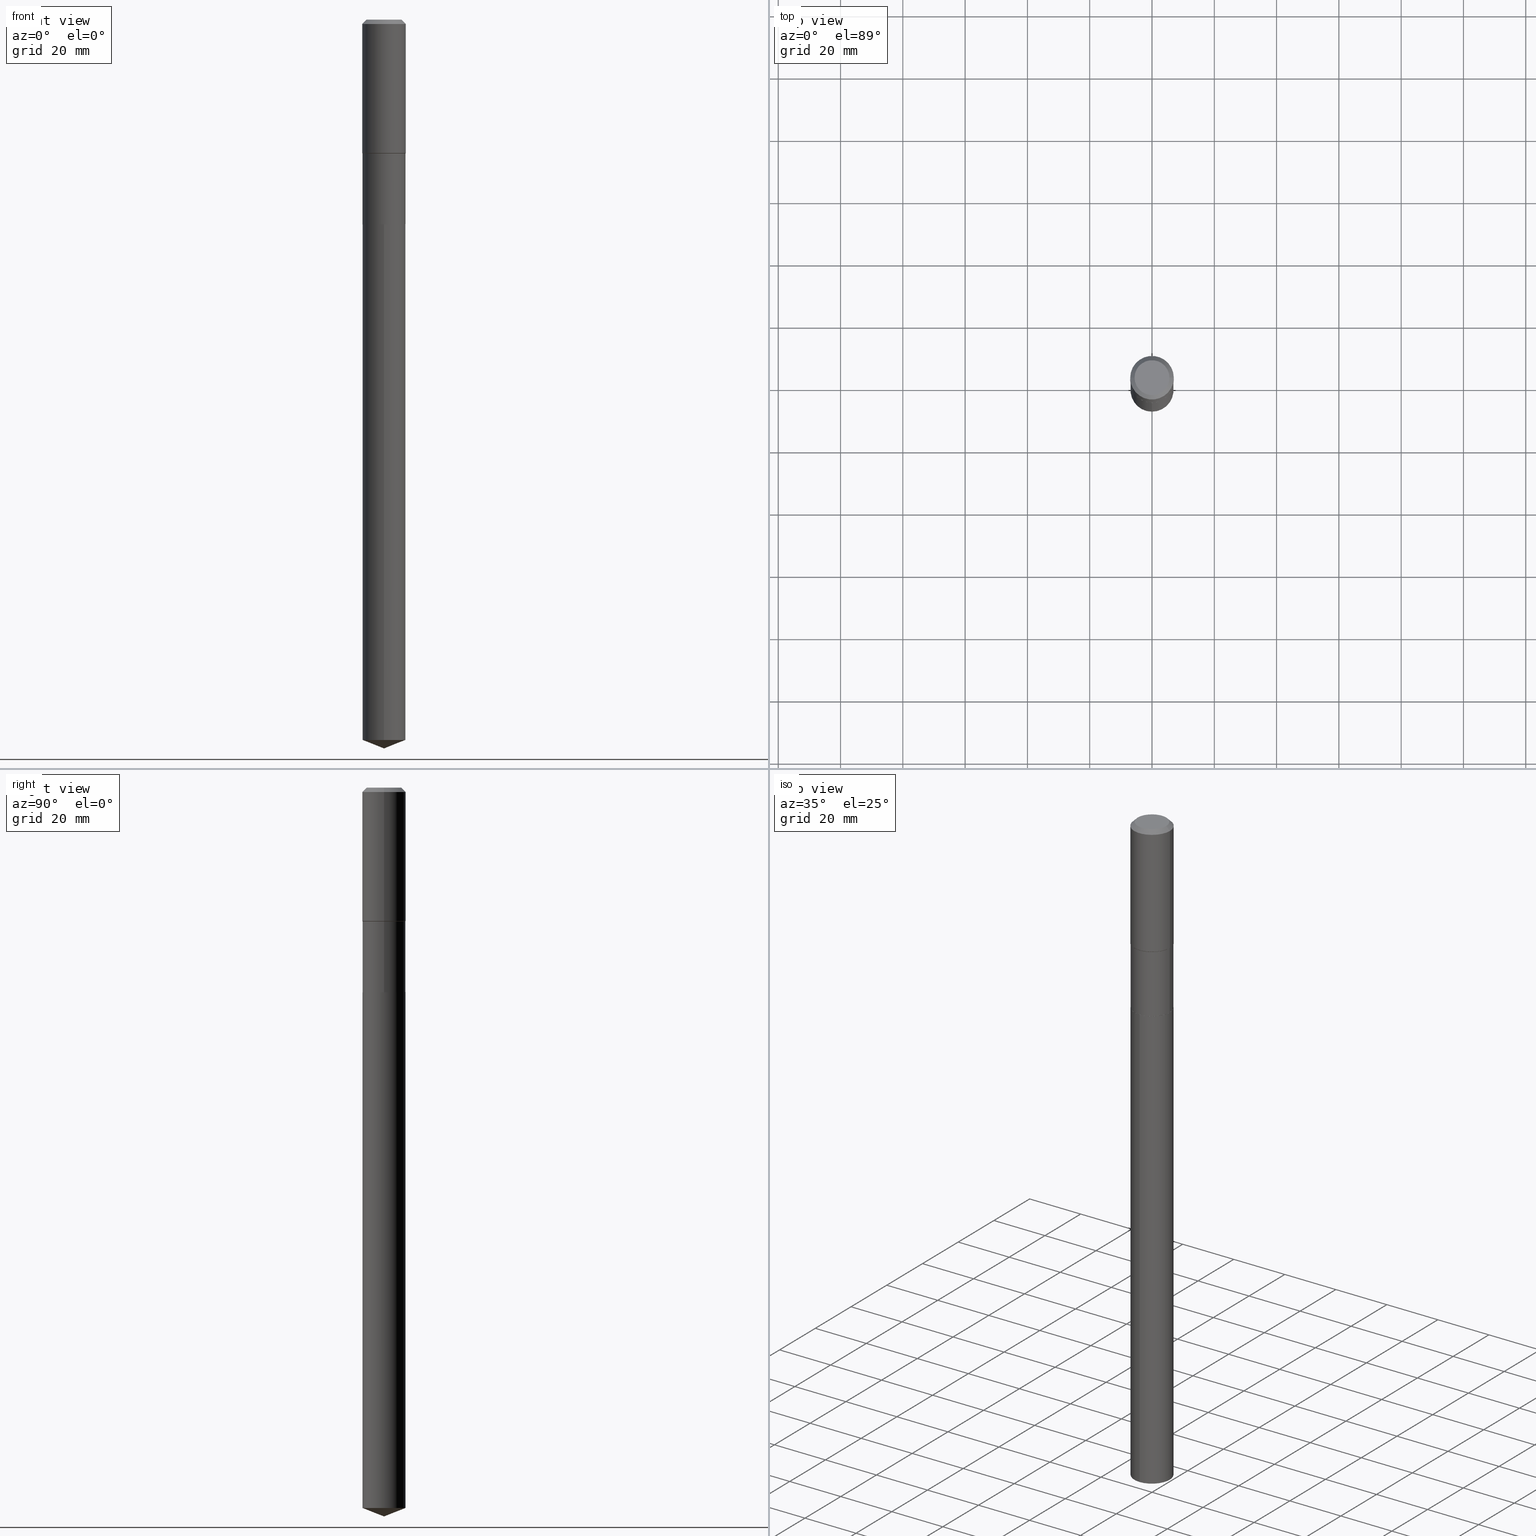
[diagram: canonical four-view strip — front | top / right | iso, engineering-drawing reading convention]
A machine part, canonical four-view strip (front | top / right | iso — engineering-drawing reading convention). The complete STEP part file that produces these views, byte-faithful:
ISO-10303-21;
HEADER;
FILE_DESCRIPTION (( 'STEP AP203' ),
    '1' );
FILE_NAME ('66804.STEP',
    '2024-04-25T06:41:34',
    ( '' ),
    ( '' ),
    'SwSTEP 2.0',
    'SolidWorks 2023',
    '' );
FILE_SCHEMA (( 'CONFIG_CONTROL_DESIGN' ));
ENDSEC;

DATA;
#1 = DIRECTION ( 'NONE',  ( -2.445468806185136877E-29, 3.491481338843145188E-15, 1.000000000000000000 ) ) ;
#2 = VERTEX_POINT ( 'NONE', #15 ) ;
#3 = CARTESIAN_POINT ( 'NONE',  ( 0.2756000000000000116, -2.083203699582869812E-15, -0.05512000000000038397 ) ) ;
#4 = ORIENTED_EDGE ( 'NONE', *, *, #320, .F. ) ;
#5 = VECTOR ( 'NONE', #102, 39.37007874015748143 ) ;
#6 = VERTEX_POINT ( 'NONE', #210 ) ;
#7 = PERSON_AND_ORGANIZATION ( #198, #432 ) ;
#8 = CC_DESIGN_DATE_AND_TIME_ASSIGNMENT ( #80, #388, ( #454 ) ) ;
#9 = CARTESIAN_POINT ( 'NONE',  ( 6.325205067197851305E-29, -9.030716482917789004E-15, -2.586499999999998245 ) ) ;
#10 = COORDINATED_UNIVERSAL_TIME_OFFSET ( 5, 0, .BEHIND. ) ;
#11 = EDGE_CURVE ( 'NONE', #239, #324, #327, .T. ) ;
#12 = ORIENTED_EDGE ( 'NONE', *, *, #238, .T. ) ;
#13 = CARTESIAN_POINT ( 'NONE',  ( 4.134065016855970892E-29, -5.902349203314333913E-15, -1.690499999999998781 ) ) ;
#14 = CIRCLE ( 'NONE', #119, 0.2756000000000002337 ) ;
#15 = CARTESIAN_POINT ( 'NONE',  ( 0.2756000000000002337, -7.813062365996238595E-15, -1.686549999999998439 ) ) ;
#16 = FACE_OUTER_BOUND ( 'NONE', #357, .T. ) ;
#17 = DIRECTION ( 'NONE',  ( 1.000000000000000000, -6.982962677686265922E-15, 4.876176775795935793E-29 ) ) ;
#18 = ORIENTED_EDGE ( 'NONE', *, *, #263, .T. ) ;
#19 = CARTESIAN_POINT ( 'NONE',  ( 2.253107948035980191E-28, -3.216562079087351327E-14, -9.212999999999999190 ) ) ;
#20 = EDGE_LOOP ( 'NONE', ( #396, #387, #195, #101 ) ) ;
#21 = CARTESIAN_POINT ( 'NONE',  ( 1.930189341692375282E-15, 0.2716499999999909543, -2.586999999999999300 ) ) ;
#22 = ADVANCED_FACE ( 'NONE', ( #244 ), #122, .T. ) ;
#23 = DIRECTION ( 'NONE',  ( 1.000000000000000000, -6.982962677686266711E-15, 0.000000000000000000 ) ) ;
#24 = AXIS2_PLACEMENT_3D ( 'NONE', #484, #174, #298 ) ;
#25 = AXIS2_PLACEMENT_3D ( 'NONE', #182, #224, #374 ) ;
#26 = DIRECTION ( 'NONE',  ( -6.982962677686265133E-15, -1.000000000000000000, 4.022599659362065925E-15 ) ) ;
#27 = CARTESIAN_POINT ( 'NONE',  ( 2.253108428361239488E-28, -3.216562079087351327E-14, -9.212999999999999190 ) ) ;
#28 = PRODUCT_RELATED_PRODUCT_CATEGORY ( 'detail', '', ( #305 ) ) ;
#29 = CARTESIAN_POINT ( 'NONE',  ( -9.439721640706190018E-47, 1.347742071746724849E-32, 3.860086710912454339E-18 ) ) ;
#30 = FACE_OUTER_BOUND ( 'NONE', #362, .T. ) ;
#31 =( NAMED_UNIT ( * ) SI_UNIT ( $, .STERADIAN. ) SOLID_ANGLE_UNIT ( ) );
#32 = DIRECTION ( 'NONE',  ( 1.000000000000000000, -6.982962677686266711E-15, 0.000000000000000000 ) ) ;
#33 = CARTESIAN_POINT ( 'NONE',  ( 1.347942405969256589E-30, -1.924504513970355070E-16, -0.05512000000000038397 ) ) ;
#34 = CIRCLE ( 'NONE', #173, 0.2716500000000000026 ) ;
#35 = DATE_AND_TIME ( #39, #302 ) ;
#36 = ADVANCED_FACE ( 'NONE', ( #129 ), #394, .T. ) ;
#37 = PERSON_AND_ORGANIZATION ( #198, #432 ) ;
#38 = ORIENTED_EDGE ( 'NONE', *, *, #59, .T. ) ;
#39 = CALENDAR_DATE ( 2024, 25, 4 ) ;
#40 = EDGE_CURVE ( 'NONE', #324, #239, #309, .T. ) ;
#41 = ORIENTED_EDGE ( 'NONE', *, *, #115, .T. ) ;
#42 = VECTOR ( 'NONE', #255, 39.37007874015748854 ) ;
#43 = ADVANCED_FACE ( 'NONE', ( #377 ), #447, .T. ) ;
#44 = VERTEX_POINT ( 'NONE', #110 ) ;
#45 = DIRECTION ( 'NONE',  ( -6.982962677686265133E-15, -1.000000000000000000, 4.022599659362065925E-15 ) ) ;
#46 = PRODUCT_DEFINITION_SHAPE ( 'NONE', 'NONE',  #256 ) ;
#47 = ORIENTED_EDGE ( 'NONE', *, *, #91, .F. ) ;
#48 = CARTESIAN_POINT ( 'NONE',  ( -0.2716500000000000026, -5.536343501423748497E-15, -2.586499999999998245 ) ) ;
#49 = CIRCLE ( 'NONE', #234, 0.2756000000000000116 ) ;
#50 = VERTEX_POINT ( 'NONE', #76 ) ;
#51 = DIRECTION ( 'NONE',  ( -2.445468806185136597E-29, 3.491481338843145583E-15, 1.000000000000000000 ) ) ;
#52 = ORIENTED_EDGE ( 'NONE', *, *, #121, .T. ) ;
#53 = CARTESIAN_POINT ( 'NONE',  ( 0.2716499999999999471, -1.896921811393474014E-15, 1.324613421144965822E-29 ) ) ;
#54 = ORIENTED_EDGE ( 'NONE', *, *, #421, .F. ) ;
#55 = CARTESIAN_POINT ( 'NONE',  ( -0.2756000000000000116, -1.082248371956631703E-15, -0.05512000000000038397 ) ) ;
#56 = VECTOR ( 'NONE', #164, 39.37007874015748143 ) ;
#57 = CIRCLE ( 'NONE', #335, 0.2204800000000000093 ) ;
#58 = PLANE ( 'NONE',  #69 ) ;
#59 = EDGE_CURVE ( 'NONE', #50, #199, #277, .T. ) ;
#60 = AXIS2_PLACEMENT_3D ( 'NONE', #167, #323, #45 ) ;
#61 = ORIENTED_EDGE ( 'NONE', *, *, #40, .F. ) ;
#62 = DIRECTION ( 'NONE',  ( -2.445468806185136597E-29, 3.491481338843145583E-15, 1.000000000000000000 ) ) ;
#63 = CC_DESIGN_PERSON_AND_ORGANIZATION_ASSIGNMENT ( #37, #418, ( #256 ) ) ;
#64 = VERTEX_POINT ( 'NONE', #341 ) ;
#65 = MANIFOLD_SOLID_BREP ( 'Body-Move/Copy2[1]', #467 ) ;
#66 = DIRECTION ( 'NONE',  ( -0.7071067811864509833, 7.493145998870005484E-15, 0.7071067811866440511 ) ) ;
#67 = CARTESIAN_POINT ( 'NONE',  ( 0.000000000000000000, 0.000000000000000000, 0.000000000000000000 ) ) ;
#68 = DIRECTION ( 'NONE',  ( -2.445574674954933606E-29, 3.491329728739120153E-15, 1.000000000000000000 ) ) ;
#69 = AXIS2_PLACEMENT_3D ( 'NONE', #207, #364, #17 ) ;
#70 = DIRECTION ( 'NONE',  ( -6.982962677686265133E-15, -1.000000000000000000, 4.022599659362065925E-15 ) ) ;
#71 = ADVANCED_FACE ( 'NONE', ( #373 ), #153, .T. ) ;
#72 = DIRECTION ( 'NONE',  ( 2.438088387897960049E-29, -3.491481338843145188E-15, -1.000000000000000000 ) ) ;
#73 = FACE_OUTER_BOUND ( 'NONE', #242, .T. ) ;
#74 = PERSON_AND_ORGANIZATION_ROLE ( 'design_owner' ) ;
#75 = PERSON_AND_ORGANIZATION ( #198, #432 ) ;
#76 = CARTESIAN_POINT ( 'NONE',  ( -1.896921811393410905E-15, -0.2716500000000090509, -2.586999999999997080 ) ) ;
#77 = APPLICATION_PROTOCOL_DEFINITION ( 'international standard', 'config_control_design', 1994, #208 ) ;
#78 = EDGE_LOOP ( 'NONE', ( #116, #422, #168, #400 ) ) ;
#79 = DATE_AND_TIME ( #453, #197 ) ;
#80 = DATE_AND_TIME ( #85, #317 ) ;
#81 = ORIENTED_EDGE ( 'NONE', *, *, #487, .F. ) ;
#82 = AXIS2_PLACEMENT_3D ( 'NONE', #13, #211, #437 ) ;
#83 = DIRECTION ( 'NONE',  ( -2.445468806185136597E-29, 3.491481338843145583E-15, 1.000000000000000000 ) ) ;
#84 = EDGE_LOOP ( 'NONE', ( #93, #423, #354, #124 ) ) ;
#85 = CALENDAR_DATE ( 2024, 25, 4 ) ;
#86 = DIRECTION ( 'NONE',  ( -6.982962677686265922E-15, -1.000000000000000000, 3.498627837350024338E-15 ) ) ;
#87 = ADVANCED_FACE ( 'NONE', ( #30 ), #300, .T. ) ;
#88 = ORIENTED_EDGE ( 'NONE', *, *, #283, .F. ) ;
#89 = CYLINDRICAL_SURFACE ( 'NONE', #390, 0.2716500000000000026 ) ;
#90 = ORIENTED_EDGE ( 'NONE', *, *, #446, .T. ) ;
#91 = EDGE_CURVE ( 'NONE', #348, #151, #241, .T. ) ;
#92 = DIRECTION ( 'NONE',  ( -2.445468806185136597E-29, 3.491481338843145583E-15, 1.000000000000000000 ) ) ;
#93 = ORIENTED_EDGE ( 'NONE', *, *, #178, .T. ) ;
#94 = DIRECTION ( 'NONE',  ( 6.982962677686265922E-15, 1.000000000000000000, -3.491329728739120153E-15 ) ) ;
#95 = UNCERTAINTY_MEASURE_WITH_UNIT (LENGTH_MEASURE( 1.000000000000000082E-05 ), #267, 'distance_accuracy_value', 'NONE');
#96 = CARTESIAN_POINT ( 'NONE',  ( 6.326427801600944107E-29, -9.032462223587211297E-15, -2.586999999999998412 ) ) ;
#97 = DIRECTION ( 'NONE',  ( -2.445468806185136597E-29, 3.491481338843145583E-15, 1.000000000000000000 ) ) ;
#98 = AXIS2_PLACEMENT_3D ( 'NONE', #259, #105, #70 ) ;
#99 = VECTOR ( 'NONE', #401, 39.37007874015748143 ) ;
#100 = ADVANCED_FACE ( 'NONE', ( #264 ), #139, .T. ) ;
#101 = ORIENTED_EDGE ( 'NONE', *, *, #141, .F. ) ;
#102 = DIRECTION ( 'NONE',  ( -2.445574674954933326E-29, 3.491329728739120153E-15, 1.000000000000000000 ) ) ;
#103 = DIRECTION ( 'NONE',  ( 1.000000000000000000, -6.982962677686264344E-15, 0.000000000000000000 ) ) ;
#104 = EDGE_CURVE ( 'NONE', #2, #476, #402, .T. ) ;
#105 = DIRECTION ( 'NONE',  ( -2.445574674954933606E-29, 3.491329728739120153E-15, 1.000000000000000000 ) ) ;
#106 = AXIS2_PLACEMENT_3D ( 'NONE', #293, #334, #485 ) ;
#107 = CC_DESIGN_APPROVAL ( #169, ( #256 ) ) ;
#108 = LENGTH_MEASURE_WITH_UNIT ( LENGTH_MEASURE( 0.02539999999999999897 ), #488 );
#109 = ADVANCED_FACE ( 'NONE', ( #128 ), #360, .T. ) ;
#110 = CARTESIAN_POINT ( 'NONE',  ( -0.2756000000000002337, -3.930302072271064685E-15, -1.686549999999998439 ) ) ;
#111 = AXIS2_PLACEMENT_3D ( 'NONE', #96, #250, #26 ) ;
#112 = CONICAL_SURFACE ( 'NONE', #185, 0.2711500000000000021, 0.7853981633973118326 ) ;
#113 = APPROVAL_STATUS ( 'not_yet_approved' ) ;
#114 = ORIENTED_EDGE ( 'NONE', *, *, #150, .F. ) ;
#115 = EDGE_CURVE ( 'NONE', #64, #133, #410, .T. ) ;
#116 = ORIENTED_EDGE ( 'NONE', *, *, #115, .F. ) ;
#117 = AXIS2_PLACEMENT_3D ( 'NONE', #227, #72, #179 ) ;
#118 = PERSON_AND_ORGANIZATION_ROLE ( 'creator' ) ;
#119 = AXIS2_PLACEMENT_3D ( 'NONE', #217, #246, #366 ) ;
#120 = CARTESIAN_POINT ( 'NONE',  ( -0.2711500000000000021, -7.103176368399588427E-15, -2.586999999999998412 ) ) ;
#121 = EDGE_CURVE ( 'NONE', #133, #64, #57, .T. ) ;
#122 = CYLINDRICAL_SURFACE ( 'NONE', #351, 0.2756000000000001227 ) ;
#123 = AXIS2_PLACEMENT_3D ( 'NONE', #416, #223, #32 ) ;
#124 = ORIENTED_EDGE ( 'NONE', *, *, #263, .F. ) ;
#125 = VECTOR ( 'NONE', #152, 39.37007874015748143 ) ;
#126 = ORIENTED_EDGE ( 'NONE', *, *, #320, .T. ) ;
#127 = CARTESIAN_POINT ( 'NONE',  ( 6.326427801600944107E-29, -9.032462223587211297E-15, -2.586999999999998412 ) ) ;
#128 = FACE_OUTER_BOUND ( 'NONE', #441, .T. ) ;
#129 = FACE_OUTER_BOUND ( 'NONE', #480, .T. ) ;
#130 = FACE_OUTER_BOUND ( 'NONE', #254, .T. ) ;
#131 = ORIENTED_EDGE ( 'NONE', *, *, #297, .F. ) ;
#132 = CARTESIAN_POINT ( 'NONE',  ( 1.930189341692534632E-15, 0.2716499999999681947, -9.105994219299201831 ) ) ;
#133 = VERTEX_POINT ( 'NONE', #472 ) ;
#134 = LINE ( 'NONE', #53, #338 ) ;
#135 = DESIGN_CONTEXT ( 'detailed design', #208, 'design' ) ;
#136 = DIRECTION ( 'NONE',  ( 2.445574674954933326E-29, -3.491329728739120153E-15, -1.000000000000000000 ) ) ;
#137 = DIRECTION ( 'NONE',  ( -6.982962677686265922E-15, -1.000000000000000000, 3.498627837350024338E-15 ) ) ;
#138 = COORDINATED_UNIVERSAL_TIME_OFFSET ( 5, 0, .BEHIND. ) ;
#139 = CONICAL_SURFACE ( 'NONE', #218, 0.2756000000000000116, 0.7853981633974449483 ) ;
#140 = AXIS2_PLACEMENT_3D ( 'NONE', #444, #97, #103 ) ;
#141 = EDGE_CURVE ( 'NONE', #316, #476, #479, .T. ) ;
#142 = PERSON_AND_ORGANIZATION ( #198, #432 ) ;
#143 = CALENDAR_DATE ( 2024, 25, 4 ) ;
#144 = APPROVAL_STATUS ( 'not_yet_approved' ) ;
#145 = VECTOR ( 'NONE', #372, 39.37007874015748143 ) ;
#146 = ORIENTED_EDGE ( 'NONE', *, *, #359, .F. ) ;
#147 =( NAMED_UNIT ( * ) PLANE_ANGLE_UNIT ( ) SI_UNIT ( $, .RADIAN. ) );
#148 = ORIENTED_EDGE ( 'NONE', *, *, #474, .T. ) ;
#149 = FACE_OUTER_BOUND ( 'NONE', #84, .T. ) ;
#150 = EDGE_CURVE ( 'NONE', #307, #6, #266, .T. ) ;
#151 = VERTEX_POINT ( 'NONE', #220 ) ;
#152 = DIRECTION ( 'NONE',  ( 0.7071067811865451302, -7.319954787623248157E-15, -0.7071067811865499042 ) ) ;
#153 = CONICAL_SURFACE ( 'NONE', #233, 99.94676754583939271, 1.195550537616117515 ) ;
#154 = CIRCLE ( 'NONE', #180, 0.2716499999999998916 ) ;
#155 = ORIENTED_EDGE ( 'NONE', *, *, #283, .T. ) ;
#156 = ADVANCED_FACE ( 'NONE', ( #73 ), #58, .F. ) ;
#157 = ORIENTED_EDGE ( 'NONE', *, *, #398, .F. ) ;
#158 = EDGE_LOOP ( 'NONE', ( #473, #201, #228, #4 ) ) ;
#159 = DIRECTION ( 'NONE',  ( 0.7071067811864509833, -2.468850131081245741E-15, 0.7071067811866440511 ) ) ;
#160 = ORIENTED_EDGE ( 'NONE', *, *, #407, .T. ) ;
#161 = CLOSED_SHELL ( 'NONE', ( #340, #100, #22, #315, #43, #303, #109, #417, #87, #469, #156, #292 ) ) ;
#162 = CARTESIAN_POINT ( 'NONE',  ( 4.134065016855970892E-29, -5.902349203314333913E-15, -1.690499999999998781 ) ) ;
#163 = AXIS2_PLACEMENT_3D ( 'NONE', #312, #83, #393 ) ;
#164 = DIRECTION ( 'NONE',  ( -2.445468806185136877E-29, 3.491481338843145188E-15, 1.000000000000000000 ) ) ;
#165 = ORIENTED_EDGE ( 'NONE', *, *, #446, .F. ) ;
#166 = FACE_OUTER_BOUND ( 'NONE', #20, .T. ) ;
#167 = CARTESIAN_POINT ( 'NONE',  ( 2.226911497049668646E-28, -3.179242054290498887E-14, -9.105994219299200054 ) ) ;
#168 = ORIENTED_EDGE ( 'NONE', *, *, #213, .T. ) ;
#169 = APPROVAL ( #144, 'UNSPECIFIED' ) ;
#170 = DIRECTION ( 'NONE',  ( 6.611014441532061856E-15, 0.9304175679820264611, 0.3665012267242923616 ) ) ;
#171 = ORIENTED_EDGE ( 'NONE', *, *, #474, .F. ) ;
#172 = LINE ( 'NONE', #291, #99 ) ;
#173 = AXIS2_PLACEMENT_3D ( 'NONE', #448, #342, #419 ) ;
#174 = DIRECTION ( 'NONE',  ( -2.445468806185136597E-29, 3.491481338843145583E-15, 1.000000000000000000 ) ) ;
#175 = PLANE ( 'NONE',  #117 ) ;
#176 = DIMENSIONAL_EXPONENTS ( 1.000000000000000000, 0.000000000000000000, 0.000000000000000000, 0.000000000000000000, 0.000000000000000000, 0.000000000000000000, 0.000000000000000000 ) ;
#177 = APPLICATION_PROTOCOL_DEFINITION ( 'international standard', 'config_control_design', 1994, #449 ) ;
#178 = EDGE_CURVE ( 'NONE', #6, #307, #375, .T. ) ;
#179 = DIRECTION ( 'NONE',  ( -1.000000000000000000, 6.982962677686265922E-15, -4.876176775795935793E-29 ) ) ;
#180 = AXIS2_PLACEMENT_3D ( 'NONE', #162, #252, #482 ) ;
#181 = PRODUCT_DEFINITION_FORMATION_WITH_SPECIFIED_SOURCE ( 'ANY', '', #305, .NOT_KNOWN. ) ;
#182 = CARTESIAN_POINT ( 'NONE',  ( 0.000000000000000000, 0.000000000000000000, 0.000000000000000000 ) ) ;
#183 = CARTESIAN_POINT ( 'NONE',  ( -0.2756000000000000116, 1.732054062573299841E-15, -0.05512000000000038397 ) ) ;
#184 = EDGE_CURVE ( 'NONE', #430, #237, #361, .T. ) ;
#185 = AXIS2_PLACEMENT_3D ( 'NONE', #127, #395, #289 ) ;
#186 = ORIENTED_EDGE ( 'NONE', *, *, #184, .T. ) ;
#187 = CARTESIAN_POINT ( 'NONE',  ( -0.2756000000000001227, 1.958255779754836984E-15, -1.355658510874252567E-29 ) ) ;
#188 = ORIENTED_EDGE ( 'NONE', *, *, #297, .T. ) ;
#189 = DIRECTION ( 'NONE',  ( -6.982962677686265133E-15, -1.000000000000000000, 4.022599659362065925E-15 ) ) ;
#190 = EDGE_CURVE ( 'NONE', #44, #316, #461, .T. ) ;
#191 = EDGE_LOOP ( 'NONE', ( #186, #90, #61, #88 ) ) ;
#192 = COORDINATED_UNIVERSAL_TIME_OFFSET ( 5, 0, .BEHIND. ) ;
#193 = LINE ( 'NONE', #429, #251 ) ;
#194 = AXIS2_PLACEMENT_3D ( 'NONE', #67, #62, #397 ) ;
#195 = ORIENTED_EDGE ( 'NONE', *, *, #104, .T. ) ;
#196 = DATE_AND_TIME ( #355, #329 ) ;
#197 = LOCAL_TIME ( 2, 41, 34.00000000000000000, #457 ) ;
#198 = PERSON ( 'UNSPECIFIED', 'UNSPECIFIED', 'UNSPECIFIED', ('UNSPECIFIED'), ('UNSPECIFIED'), ('UNSPECIFIED') ) ;
#199 = VERTEX_POINT ( 'NONE', #347 ) ;
#200 = APPROVAL ( #308, 'UNSPECIFIED' ) ;
#201 = ORIENTED_EDGE ( 'NONE', *, *, #11, .T. ) ;
#202 = CARTESIAN_POINT ( 'NONE',  ( 0.2711500000000000021, -1.092589255364184270E-14, -2.586999999999998412 ) ) ;
#203 = ORIENTED_EDGE ( 'NONE', *, *, #213, .F. ) ;
#204 = AXIS2_PLACEMENT_3D ( 'NONE', #319, #216, #23 ) ;
#205 = DIRECTION ( 'NONE',  ( 1.000000000000000000, -6.982962677686266711E-15, 4.876176775795936353E-29 ) ) ;
#206 = VECTOR ( 'NONE', #288, 39.37007874015748143 ) ;
#207 = CARTESIAN_POINT ( 'NONE',  ( 6.326427801600944107E-29, -9.032462223587211297E-15, -2.586999999999998412 ) ) ;
#208 = APPLICATION_CONTEXT ( 'configuration controlled 3d designs of mechanical parts and assemblies' ) ;
#209 = ADVANCED_FACE ( 'NONE', ( #149 ), #89, .T. ) ;
#210 = CARTESIAN_POINT ( 'NONE',  ( -1.896921811393251161E-15, -0.2716500000000317550, -9.105994219299200054 ) ) ;
#211 = DIRECTION ( 'NONE',  ( -2.445468806185136597E-29, 3.491481338843145583E-15, 1.000000000000000000 ) ) ;
#212 = CARTESIAN_POINT ( 'NONE',  ( -9.439721640706190018E-47, 1.347742071746724849E-32, 3.860086710912454339E-18 ) ) ;
#213 = EDGE_CURVE ( 'NONE', #476, #316, #49, .T. ) ;
#214 = ORIENTED_EDGE ( 'NONE', *, *, #150, .T. ) ;
#215 = CARTESIAN_POINT ( 'NONE',  ( 0.2716499999999998916, -7.799271014707807533E-15, -1.690499999999998781 ) ) ;
#216 = DIRECTION ( 'NONE',  ( -2.445468806185136597E-29, 3.491481338843145583E-15, 1.000000000000000000 ) ) ;
#217 = CARTESIAN_POINT ( 'NONE',  ( 4.124405415071538433E-29, -5.888557852025902063E-15, -1.686549999999998439 ) ) ;
#218 = AXIS2_PLACEMENT_3D ( 'NONE', #339, #406, #450 ) ;
#219 = CONICAL_SURFACE ( 'NONE', #301, 0.2711500000000000021, 0.7853981633973118326 ) ;
#220 = CARTESIAN_POINT ( 'NONE',  ( -0.2716499999999998916, -5.536343501423750074E-15, -1.690499999999998781 ) ) ;
#221 = CARTESIAN_POINT ( 'NONE',  ( -7.375166192005843757E-28, 1.052879133220991924E-13, 30.15707874015748402 ) ) ;
#222 = CARTESIAN_POINT ( 'NONE',  ( 0.2756000000000001227, -1.924504513970336137E-15, 1.343874319409360548E-29 ) ) ;
#223 = DIRECTION ( 'NONE',  ( -2.445468806185136597E-29, 3.491481338843145583E-15, 1.000000000000000000 ) ) ;
#224 = DIRECTION ( 'NONE',  ( 0.000000000000000000, 0.000000000000000000, 1.000000000000000000 ) ) ;
#225 = COORDINATED_UNIVERSAL_TIME_OFFSET ( 5, 0, .BEHIND. ) ;
#226 = CC_DESIGN_PERSON_AND_ORGANIZATION_ASSIGNMENT ( #349, #384, ( #454 ) ) ;
#227 = CARTESIAN_POINT ( 'NONE',  ( -4.719860820353095009E-47, 6.738710358733624243E-33, 1.930043355456227170E-18 ) ) ;
#228 = ORIENTED_EDGE ( 'NONE', *, *, #398, .T. ) ;
#229 = APPROVAL_ROLE ( '' ) ;
#230 = ORIENTED_EDGE ( 'NONE', *, *, #104, .F. ) ;
#231 = SECURITY_CLASSIFICATION_LEVEL ( 'unclassified' ) ;
#232 = CC_DESIGN_PERSON_AND_ORGANIZATION_ASSIGNMENT ( #311, #428, ( #181 ) ) ;
#233 = AXIS2_PLACEMENT_3D ( 'NONE', #221, #371, #137 ) ;
#234 = AXIS2_PLACEMENT_3D ( 'NONE', #306, #51, #240 ) ;
#235 = EDGE_LOOP ( 'NONE', ( #165, #188, #155, #343 ) ) ;
#236 = EDGE_CURVE ( 'NONE', #64, #476, #425, .T. ) ;
#237 = VERTEX_POINT ( 'NONE', #120 ) ;
#238 = EDGE_CURVE ( 'NONE', #2, #44, #420, .T. ) ;
#239 = VERTEX_POINT ( 'NONE', #48 ) ;
#240 = DIRECTION ( 'NONE',  ( 1.000000000000000000, -6.982962677686267499E-15, 0.000000000000000000 ) ) ;
#241 = CIRCLE ( 'NONE', #123, 0.2716499999999998916 ) ;
#242 = EDGE_LOOP ( 'NONE', ( #274, #131 ) ) ;
#243 = CARTESIAN_POINT ( 'NONE',  ( 0.2711500000000000021, -1.092589255364184270E-14, -2.586999999999998412 ) ) ;
#244 = FACE_OUTER_BOUND ( 'NONE', #460, .T. ) ;
#245 = EDGE_LOOP ( 'NONE', ( #365, #286, #47, #157 ) ) ;
#246 = DIRECTION ( 'NONE',  ( -2.445468806185136597E-29, 3.491481338843145583E-15, 1.000000000000000000 ) ) ;
#247 = ORIENTED_EDGE ( 'NONE', *, *, #236, .F. ) ;
#248 = DIRECTION ( 'NONE',  ( -2.445468806185136877E-29, 3.491481338843145188E-15, 1.000000000000000000 ) ) ;
#249 = DIRECTION ( 'NONE',  ( -6.982962677686265133E-15, -1.000000000000000000, 4.022599659362065925E-15 ) ) ;
#250 = DIRECTION ( 'NONE',  ( -2.445574674954933606E-29, 3.491329728739120153E-15, 1.000000000000000000 ) ) ;
#251 = VECTOR ( 'NONE', #350, 39.37007874015748143 ) ;
#252 = DIRECTION ( 'NONE',  ( -2.445468806185136597E-29, 3.491481338843145583E-15, 1.000000000000000000 ) ) ;
#253 = CC_DESIGN_SECURITY_CLASSIFICATION ( #454, ( #181 ) ) ;
#254 = EDGE_LOOP ( 'NONE', ( #38, #148 ) ) ;
#255 = DIRECTION ( 'NONE',  ( -6.497071151882115103E-15, -0.9304175679820237965, 0.3665012267242989119 ) ) ;
#256 = PRODUCT_DEFINITION ( 'UNKNOWN', '', #181, #135 ) ;
#257 = DIRECTION ( 'NONE',  ( -2.445468806185136597E-29, 3.491481338843145583E-15, 1.000000000000000000 ) ) ;
#258 = CARTESIAN_POINT ( 'NONE',  ( 2.226911497049668646E-28, -3.179242054290498887E-14, -9.105994219299200054 ) ) ;
#259 = CARTESIAN_POINT ( 'NONE',  ( 6.326427801600944107E-29, -9.032462223587211297E-15, -2.586999999999998412 ) ) ;
#260 = ADVANCED_BREP_SHAPE_REPRESENTATION ( '66804', ( #65, #380, #25 ), #287 ) ;
#261 = CONICAL_SURFACE ( 'NONE', #458, 99.94676754583939271, 1.195550537616117515 ) ;
#262 = DIRECTION ( 'NONE',  ( 2.445468806185136597E-29, -3.491481338843145583E-15, -1.000000000000000000 ) ) ;
#263 = EDGE_CURVE ( 'NONE', #6, #50, #193, .T. ) ;
#264 = FACE_OUTER_BOUND ( 'NONE', #78, .T. ) ;
#265 = DATE_AND_TIME ( #143, #468 ) ;
#266 = CIRCLE ( 'NONE', #345, 0.2716500000000000026 ) ;
#267 =( CONVERSION_BASED_UNIT ( 'INCH', #108 ) LENGTH_UNIT ( ) NAMED_UNIT ( #176 ) );
#268 = APPROVAL ( #113, 'UNSPECIFIED' ) ;
#269 = ORIENTED_EDGE ( 'NONE', *, *, #443, .T. ) ;
#270 = ORIENTED_EDGE ( 'NONE', *, *, #91, .T. ) ;
#271 = ADVANCED_FACE ( 'NONE', ( #464 ), #261, .T. ) ;
#272 = AXIS2_PLACEMENT_3D ( 'NONE', #29, #409, #415 ) ;
#273 = VECTOR ( 'NONE', #159, 39.37007874015748143 ) ;
#274 = ORIENTED_EDGE ( 'NONE', *, *, #184, .F. ) ;
#275 = CARTESIAN_POINT ( 'NONE',  ( 4.124405415071538433E-29, -5.888557852025902063E-15, -1.686549999999998439 ) ) ;
#276 = CARTESIAN_POINT ( 'NONE',  ( -7.375166192005843757E-28, 1.052879133220991924E-13, 30.15707874015748402 ) ) ;
#277 = CIRCLE ( 'NONE', #98, 0.2716500000000000026 ) ;
#278 = AXIS2_PLACEMENT_3D ( 'NONE', #290, #445, #285 ) ;
#279 = DIRECTION ( 'NONE',  ( -2.445468806185136597E-29, 3.491481338843145583E-15, 1.000000000000000000 ) ) ;
#280 = ORIENTED_EDGE ( 'NONE', *, *, #487, .T. ) ;
#281 = PLANE ( 'NONE',  #369 ) ;
#282 = ORIENTED_EDGE ( 'NONE', *, *, #141, .T. ) ;
#283 = EDGE_CURVE ( 'NONE', #430, #324, #389, .T. ) ;
#284 = CARTESIAN_POINT ( 'NONE',  ( 0.2716500000000000026, -1.092763829431126499E-14, -2.586499999999998245 ) ) ;
#285 = DIRECTION ( 'NONE',  ( 1.000000000000000000, -6.982962677686267499E-15, 0.000000000000000000 ) ) ;
#286 = ORIENTED_EDGE ( 'NONE', *, *, #382, .T. ) ;
#287 =( GEOMETRIC_REPRESENTATION_CONTEXT ( 3 ) GLOBAL_UNCERTAINTY_ASSIGNED_CONTEXT ( ( #95 ) ) GLOBAL_UNIT_ASSIGNED_CONTEXT ( ( #267, #147, #31 ) ) REPRESENTATION_CONTEXT ( 'NONE', 'WORKASPACE' ) );
#288 = DIRECTION ( 'NONE',  ( -2.445468806185136877E-29, 3.491481338843145188E-15, 1.000000000000000000 ) ) ;
#289 = DIRECTION ( 'NONE',  ( 1.000000000000000000, -6.982962677686264344E-15, 0.000000000000000000 ) ) ;
#290 = CARTESIAN_POINT ( 'NONE',  ( 1.347942405969256589E-30, -1.924504513970355070E-16, -0.05512000000000038397 ) ) ;
#291 = CARTESIAN_POINT ( 'NONE',  ( -0.2716499999999998916, -3.972159861622022135E-15, -1.690499999999998781 ) ) ;
#292 = ADVANCED_FACE ( 'NONE', ( #314 ), #112, .T. ) ;
#293 = CARTESIAN_POINT ( 'NONE',  ( 0.000000000000000000, 0.000000000000000000, 0.000000000000000000 ) ) ;
#294 = APPROVAL_DATE_TIME ( #265, #169 ) ;
#295 = CIRCLE ( 'NONE', #140, 0.2711500000000000021 ) ;
#296 = DIRECTION ( 'NONE',  ( -0.7071067811865451302, 2.468850131082231817E-15, -0.7071067811865499042 ) ) ;
#297 = EDGE_CURVE ( 'NONE', #237, #430, #295, .T. ) ;
#298 = DIRECTION ( 'NONE',  ( 1.000000000000000000, -6.982962677686269866E-15, 0.000000000000000000 ) ) ;
#299 = APPROVAL_DATE_TIME ( #35, #268 ) ;
#300 = CONICAL_SURFACE ( 'NONE', #337, 0.2756000000000000116, 0.7853981633974449483 ) ;
#301 = AXIS2_PLACEMENT_3D ( 'NONE', #322, #92, #471 ) ;
#302 = LOCAL_TIME ( 2, 41, 34.00000000000000000, #225 ) ;
#303 = ADVANCED_FACE ( 'NONE', ( #331 ), #318, .T. ) ;
#304 = ORIENTED_EDGE ( 'NONE', *, *, #238, .F. ) ;
#305 = PRODUCT ( '66804', '66804', '', ( #333 ) ) ;
#306 = CARTESIAN_POINT ( 'NONE',  ( 1.347942405969256589E-30, -1.924504513970355070E-16, -0.05512000000000038397 ) ) ;
#307 = VERTEX_POINT ( 'NONE', #132 ) ;
#308 = APPROVAL_STATUS ( 'not_yet_approved' ) ;
#309 = CIRCLE ( 'NONE', #24, 0.2716500000000000026 ) ;
#310 = AXIS2_PLACEMENT_3D ( 'NONE', #439, #257, #205 ) ;
#311 = PERSON_AND_ORGANIZATION ( #198, #432 ) ;
#312 = CARTESIAN_POINT ( 'NONE',  ( 6.326427801600944107E-29, -9.032462223587211297E-15, -2.586999999999998412 ) ) ;
#313 = DIRECTION ( 'NONE',  ( -2.445468806185136597E-29, 3.491481338843145583E-15, 1.000000000000000000 ) ) ;
#314 = FACE_OUTER_BOUND ( 'NONE', #235, .T. ) ;
#315 = ADVANCED_FACE ( 'NONE', ( #16 ), #426, .T. ) ;
#316 = VERTEX_POINT ( 'NONE', #55 ) ;
#317 = LOCAL_TIME ( 2, 41, 34.00000000000000000, #10 ) ;
#318 = CYLINDRICAL_SURFACE ( 'NONE', #310, 0.2716499999999999471 ) ;
#319 = CARTESIAN_POINT ( 'NONE',  ( 4.134065016855970892E-29, -5.902349203314333913E-15, -1.690499999999998781 ) ) ;
#320 = EDGE_CURVE ( 'NONE', #151, #348, #154, .T. ) ;
#321 = CARTESIAN_POINT ( 'NONE',  ( 0.000000000000000000, 0.000000000000000000, 0.000000000000000000 ) ) ;
#322 = CARTESIAN_POINT ( 'NONE',  ( 6.326427801600944107E-29, -9.032462223587211297E-15, -2.586999999999998412 ) ) ;
#323 = DIRECTION ( 'NONE',  ( -2.445574674954933606E-29, 3.491329728739120153E-15, 1.000000000000000000 ) ) ;
#324 = VERTEX_POINT ( 'NONE', #284 ) ;
#325 = CARTESIAN_POINT ( 'NONE',  ( 6.326427801600944107E-29, -9.032462223587211297E-15, -2.586999999999998412 ) ) ;
#326 = ORIENTED_EDGE ( 'NONE', *, *, #436, .T. ) ;
#327 = CIRCLE ( 'NONE', #451, 0.2716500000000000026 ) ;
#328 = FACE_OUTER_BOUND ( 'NONE', #435, .T. ) ;
#329 = LOCAL_TIME ( 2, 41, 34.00000000000000000, #192 ) ;
#330 = DIRECTION ( 'NONE',  ( -2.445468806185136597E-29, 3.491481338843145583E-15, 1.000000000000000000 ) ) ;
#331 = FACE_OUTER_BOUND ( 'NONE', #158, .T. ) ;
#332 = DIRECTION ( 'NONE',  ( 1.000000000000000000, -6.982962677686266711E-15, 4.876132675269083677E-29 ) ) ;
#333 = MECHANICAL_CONTEXT ( 'NONE', #449, 'mechanical' ) ;
#334 = DIRECTION ( 'NONE',  ( -2.445468806185136597E-29, 3.491481338843145583E-15, 1.000000000000000000 ) ) ;
#335 = AXIS2_PLACEMENT_3D ( 'NONE', #212, #330, #332 ) ;
#336 = LINE ( 'NONE', #344, #145 ) ;
#337 = AXIS2_PLACEMENT_3D ( 'NONE', #33, #262, #483 ) ;
#338 = VECTOR ( 'NONE', #248, 39.37007874015748143 ) ;
#339 = CARTESIAN_POINT ( 'NONE',  ( 1.347942405969256589E-30, -1.924504513970355070E-16, -0.05512000000000038397 ) ) ;
#340 = ADVANCED_FACE ( 'NONE', ( #368 ), #219, .T. ) ;
#341 = CARTESIAN_POINT ( 'NONE',  ( 0.2204800000000000093, -1.797903149065768707E-15, 3.860086710924123164E-18 ) ) ;
#342 = DIRECTION ( 'NONE',  ( -2.445574674954933606E-29, 3.491329728739120153E-15, 1.000000000000000000 ) ) ;
#343 = ORIENTED_EDGE ( 'NONE', *, *, #11, .F. ) ;
#344 = CARTESIAN_POINT ( 'NONE',  ( 0.2716499999999998916, -7.799271014707807533E-15, -1.690499999999998781 ) ) ;
#345 = AXIS2_PLACEMENT_3D ( 'NONE', #258, #68, #249 ) ;
#346 = APPROVAL_ROLE ( '' ) ;
#347 = CARTESIAN_POINT ( 'NONE',  ( 1.930189341692536210E-15, 0.2716499999999909543, -2.586999999999999300 ) ) ;
#348 = VERTEX_POINT ( 'NONE', #215 ) ;
#349 = PERSON_AND_ORGANIZATION ( #198, #432 ) ;
#350 = DIRECTION ( 'NONE',  ( -2.445574674954933326E-29, 3.491329728739120153E-15, 1.000000000000000000 ) ) ;
#351 = AXIS2_PLACEMENT_3D ( 'NONE', #321, #279, #434 ) ;
#352 = ADVANCED_FACE ( 'NONE', ( #130 ), #281, .F. ) ;
#353 = SHAPE_DEFINITION_REPRESENTATION ( #46, #260 ) ;
#354 = ORIENTED_EDGE ( 'NONE', *, *, #59, .F. ) ;
#355 = CALENDAR_DATE ( 2024, 25, 4 ) ;
#356 = DIRECTION ( 'NONE',  ( 1.000000000000000000, -6.982962677686267499E-15, 0.000000000000000000 ) ) ;
#357 = EDGE_LOOP ( 'NONE', ( #270, #160, #304, #81 ) ) ;
#358 = LINE ( 'NONE', #478, #42 ) ;
#359 = EDGE_CURVE ( 'NONE', #307, #199, #481, .T. ) ;
#360 = CONICAL_SURFACE ( 'NONE', #204, 0.2716499999999998916, 0.7853981633974439491 ) ;
#361 = CIRCLE ( 'NONE', #163, 0.2711500000000000021 ) ;
#362 = EDGE_LOOP ( 'NONE', ( #247, #438, #381, #282 ) ) ;
#363 = CARTESIAN_POINT ( 'NONE',  ( -0.2716499999999999471, 1.930189341692311779E-15, -1.336228717267745096E-29 ) ) ;
#364 = DIRECTION ( 'NONE',  ( -2.438088387897960049E-29, 3.491481338843145188E-15, 1.000000000000000000 ) ) ;
#365 = ORIENTED_EDGE ( 'NONE', *, *, #40, .T. ) ;
#366 = DIRECTION ( 'NONE',  ( 1.000000000000000000, -6.982962677686267499E-15, 0.000000000000000000 ) ) ;
#367 = EDGE_LOOP ( 'NONE', ( #459, #269, #114 ) ) ;
#368 = FACE_OUTER_BOUND ( 'NONE', #191, .T. ) ;
#369 = AXIS2_PLACEMENT_3D ( 'NONE', #325, #136, #94 ) ;
#370 = LINE ( 'NONE', #27, #399 ) ;
#371 = DIRECTION ( 'NONE',  ( -2.445574674954933606E-29, 3.491329728739120153E-15, 1.000000000000000000 ) ) ;
#372 = DIRECTION ( 'NONE',  ( 0.7071067811865444641, -2.468850131082224717E-15, 0.7071067811865505703 ) ) ;
#373 = FACE_OUTER_BOUND ( 'NONE', #367, .T. ) ;
#374 = DIRECTION ( 'NONE',  ( 1.000000000000000000, 0.000000000000000000, 0.000000000000000000 ) ) ;
#375 = CIRCLE ( 'NONE', #60, 0.2716500000000000026 ) ;
#376 = APPROVAL_PERSON_ORGANIZATION ( #75, #268, #229 ) ;
#377 = FACE_OUTER_BOUND ( 'NONE', #245, .T. ) ;
#378 = LINE ( 'NONE', #183, #440 ) ;
#379 = DATE_TIME_ROLE ( 'creation_date' ) ;
#380 = MANIFOLD_SOLID_BREP ( 'Body-Move/Copy2[2]', #161 ) ;
#381 = ORIENTED_EDGE ( 'NONE', *, *, #477, .T. ) ;
#382 = EDGE_CURVE ( 'NONE', #239, #151, #408, .T. ) ;
#383 = ORIENTED_EDGE ( 'NONE', *, *, #407, .F. ) ;
#384 = PERSON_AND_ORGANIZATION_ROLE ( 'classification_officer' ) ;
#385 = CARTESIAN_POINT ( 'NONE',  ( 6.326427801600944107E-29, -9.032462223587211297E-15, -2.586999999999998412 ) ) ;
#386 = DIRECTION ( 'NONE',  ( -2.445574674954933606E-29, 3.491329728739120153E-15, 1.000000000000000000 ) ) ;
#387 = ORIENTED_EDGE ( 'NONE', *, *, #421, .T. ) ;
#388 = DATE_TIME_ROLE ( 'classification_date' ) ;
#389 = LINE ( 'NONE', #243, #273 ) ;
#390 = AXIS2_PLACEMENT_3D ( 'NONE', #385, #386, #189 ) ;
#391 = CC_DESIGN_APPROVAL ( #268, ( #181 ) ) ;
#392 = ORIENTED_EDGE ( 'NONE', *, *, #178, .F. ) ;
#393 = DIRECTION ( 'NONE',  ( 1.000000000000000000, -6.982962677686264344E-15, 0.000000000000000000 ) ) ;
#394 = CYLINDRICAL_SURFACE ( 'NONE', #111, 0.2716500000000000026 ) ;
#395 = DIRECTION ( 'NONE',  ( -2.445468806185136597E-29, 3.491481338843145583E-15, 1.000000000000000000 ) ) ;
#396 = ORIENTED_EDGE ( 'NONE', *, *, #190, .F. ) ;
#397 = DIRECTION ( 'NONE',  ( 1.000000000000000000, -6.982962677686267499E-15, 4.876176775795935793E-29 ) ) ;
#398 = EDGE_CURVE ( 'NONE', #324, #348, #134, .T. ) ;
#399 = VECTOR ( 'NONE', #170, 39.37007874015748143 ) ;
#400 = ORIENTED_EDGE ( 'NONE', *, *, #477, .F. ) ;
#401 = DIRECTION ( 'NONE',  ( -0.7071067811865444641, 7.493145998870343116E-15, 0.7071067811865505703 ) ) ;
#402 = LINE ( 'NONE', #222, #56 ) ;
#403 = CC_DESIGN_DATE_AND_TIME_ASSIGNMENT ( #79, #379, ( #256 ) ) ;
#404 = ORIENTED_EDGE ( 'NONE', *, *, #443, .F. ) ;
#405 = CARTESIAN_POINT ( 'NONE',  ( -0.2711500000000000021, -7.105825595573701205E-15, -2.586999999999998412 ) ) ;
#406 = DIRECTION ( 'NONE',  ( 2.445468806185136597E-29, -3.491481338843145583E-15, -1.000000000000000000 ) ) ;
#407 = EDGE_CURVE ( 'NONE', #151, #44, #172, .T. ) ;
#408 = LINE ( 'NONE', #363, #206 ) ;
#409 = DIRECTION ( 'NONE',  ( -2.445468806185136597E-29, 3.491481338843145583E-15, 1.000000000000000000 ) ) ;
#410 = CIRCLE ( 'NONE', #272, 0.2204800000000000093 ) ;
#411 = VECTOR ( 'NONE', #1, 39.37007874015748143 ) ;
#412 = CARTESIAN_POINT ( 'NONE',  ( 0.2756000000000000116, -2.116954965367371053E-15, -0.05512000000000038397 ) ) ;
#413 = CC_DESIGN_APPROVAL ( #200, ( #454 ) ) ;
#414 = CC_DESIGN_PERSON_AND_ORGANIZATION_ASSIGNMENT ( #456, #118, ( #181 ) ) ;
#415 = DIRECTION ( 'NONE',  ( 1.000000000000000000, -6.982962677686266711E-15, 4.876132675269083677E-29 ) ) ;
#416 = CARTESIAN_POINT ( 'NONE',  ( 4.134065016855970892E-29, -5.902349203314333913E-15, -1.690499999999998781 ) ) ;
#417 = ADVANCED_FACE ( 'NONE', ( #166 ), #475, .T. ) ;
#418 = PERSON_AND_ORGANIZATION_ROLE ( 'creator' ) ;
#419 = DIRECTION ( 'NONE',  ( -6.982962677686265133E-15, -1.000000000000000000, 4.022599659362065925E-15 ) ) ;
#420 = CIRCLE ( 'NONE', #452, 0.2756000000000002337 ) ;
#421 = EDGE_CURVE ( 'NONE', #44, #2, #14, .T. ) ;
#422 = ORIENTED_EDGE ( 'NONE', *, *, #236, .T. ) ;
#423 = ORIENTED_EDGE ( 'NONE', *, *, #359, .T. ) ;
#424 = APPROVAL_DATE_TIME ( #196, #200 ) ;
#425 = LINE ( 'NONE', #3, #125 ) ;
#426 = CONICAL_SURFACE ( 'NONE', #82, 0.2716499999999998916, 0.7853981633974439491 ) ;
#427 = VERTEX_POINT ( 'NONE', #19 ) ;
#428 = PERSON_AND_ORGANIZATION_ROLE ( 'design_supplier' ) ;
#429 = CARTESIAN_POINT ( 'NONE',  ( -1.896921811393410905E-15, -0.2716500000000090509, -2.586999999999997080 ) ) ;
#430 = VERTEX_POINT ( 'NONE', #202 ) ;
#431 = DIRECTION ( 'NONE',  ( -2.445574674954933606E-29, 3.491329728739120153E-15, 1.000000000000000000 ) ) ;
#432 = ORGANIZATION ( 'UNSPECIFIED', 'UNSPECIFIED', '' ) ;
#433 = APPROVAL_PERSON_ORGANIZATION ( #7, #200, #346 ) ;
#434 = DIRECTION ( 'NONE',  ( 1.000000000000000000, -6.982962677686267499E-15, 4.876176775795935793E-29 ) ) ;
#435 = EDGE_LOOP ( 'NONE', ( #52, #41 ) ) ;
#436 = EDGE_CURVE ( 'NONE', #427, #307, #370, .T. ) ;
#437 = DIRECTION ( 'NONE',  ( 1.000000000000000000, -6.982962677686266711E-15, 0.000000000000000000 ) ) ;
#438 = ORIENTED_EDGE ( 'NONE', *, *, #121, .F. ) ;
#439 = CARTESIAN_POINT ( 'NONE',  ( 0.000000000000000000, 0.000000000000000000, 0.000000000000000000 ) ) ;
#440 = VECTOR ( 'NONE', #296, 39.37007874015748143 ) ;
#441 = EDGE_LOOP ( 'NONE', ( #383, #126, #280, #54 ) ) ;
#442 = LINE ( 'NONE', #405, #462 ) ;
#443 = EDGE_CURVE ( 'NONE', #427, #6, #358, .T. ) ;
#444 = CARTESIAN_POINT ( 'NONE',  ( 6.326427801600944107E-29, -9.032462223587211297E-15, -2.586999999999998412 ) ) ;
#445 = DIRECTION ( 'NONE',  ( -2.445468806185136597E-29, 3.491481338843145583E-15, 1.000000000000000000 ) ) ;
#446 = EDGE_CURVE ( 'NONE', #237, #239, #442, .T. ) ;
#447 = CYLINDRICAL_SURFACE ( 'NONE', #106, 0.2716499999999999471 ) ;
#448 = CARTESIAN_POINT ( 'NONE',  ( 6.326427801600944107E-29, -9.032462223587211297E-15, -2.586999999999998412 ) ) ;
#449 = APPLICATION_CONTEXT ( 'configuration controlled 3d designs of mechanical parts and assemblies' ) ;
#450 = DIRECTION ( 'NONE',  ( -1.000000000000000000, 6.982962677686267499E-15, 0.000000000000000000 ) ) ;
#451 = AXIS2_PLACEMENT_3D ( 'NONE', #9, #313, #465 ) ;
#452 = AXIS2_PLACEMENT_3D ( 'NONE', #275, #466, #356 ) ;
#453 = CALENDAR_DATE ( 2024, 25, 4 ) ;
#454 = SECURITY_CLASSIFICATION ( '', '', #231 ) ;
#455 = APPROVAL_ROLE ( '' ) ;
#456 = PERSON_AND_ORGANIZATION ( #198, #432 ) ;
#457 = COORDINATED_UNIVERSAL_TIME_OFFSET ( 5, 0, .BEHIND. ) ;
#458 = AXIS2_PLACEMENT_3D ( 'NONE', #276, #431, #86 ) ;
#459 = ORIENTED_EDGE ( 'NONE', *, *, #436, .F. ) ;
#460 = EDGE_LOOP ( 'NONE', ( #12, #470, #203, #230 ) ) ;
#461 = LINE ( 'NONE', #187, #411 ) ;
#462 = VECTOR ( 'NONE', #66, 39.37007874015748143 ) ;
#463 = EDGE_LOOP ( 'NONE', ( #404, #326, #392 ) ) ;
#464 = FACE_OUTER_BOUND ( 'NONE', #463, .T. ) ;
#465 = DIRECTION ( 'NONE',  ( 1.000000000000000000, -6.982962677686269866E-15, 0.000000000000000000 ) ) ;
#466 = DIRECTION ( 'NONE',  ( -2.445468806185136597E-29, 3.491481338843145583E-15, 1.000000000000000000 ) ) ;
#467 = CLOSED_SHELL ( 'NONE', ( #209, #271, #71, #36, #352 ) ) ;
#468 = LOCAL_TIME ( 2, 41, 34.00000000000000000, #138 ) ;
#469 = ADVANCED_FACE ( 'NONE', ( #328 ), #175, .F. ) ;
#470 = ORIENTED_EDGE ( 'NONE', *, *, #190, .T. ) ;
#471 = DIRECTION ( 'NONE',  ( 1.000000000000000000, -6.982962677686264344E-15, 0.000000000000000000 ) ) ;
#472 = CARTESIAN_POINT ( 'NONE',  ( -0.2204800000000000093, 1.635828836874783961E-15, 3.860086710901350968E-18 ) ) ;
#473 = ORIENTED_EDGE ( 'NONE', *, *, #382, .F. ) ;
#474 = EDGE_CURVE ( 'NONE', #199, #50, #34, .T. ) ;
#475 = CYLINDRICAL_SURFACE ( 'NONE', #194, 0.2756000000000001227 ) ;
#476 = VERTEX_POINT ( 'NONE', #412 ) ;
#477 = EDGE_CURVE ( 'NONE', #133, #316, #378, .T. ) ;
#478 = CARTESIAN_POINT ( 'NONE',  ( 2.253053171534487296E-28, -3.216640522155173720E-14, -9.212999999999999190 ) ) ;
#479 = CIRCLE ( 'NONE', #278, 0.2756000000000000116 ) ;
#480 = EDGE_LOOP ( 'NONE', ( #146, #214, #18, #171 ) ) ;
#481 = LINE ( 'NONE', #21, #5 ) ;
#482 = DIRECTION ( 'NONE',  ( 1.000000000000000000, -6.982962677686266711E-15, 0.000000000000000000 ) ) ;
#483 = DIRECTION ( 'NONE',  ( -1.000000000000000000, 6.982962677686267499E-15, 0.000000000000000000 ) ) ;
#484 = CARTESIAN_POINT ( 'NONE',  ( 6.325205067197851305E-29, -9.030716482917789004E-15, -2.586499999999998245 ) ) ;
#485 = DIRECTION ( 'NONE',  ( 1.000000000000000000, -6.982962677686266711E-15, 4.876176775795936353E-29 ) ) ;
#486 = PERSON_AND_ORGANIZATION ( #198, #432 ) ;
#487 = EDGE_CURVE ( 'NONE', #348, #2, #336, .T. ) ;
#488 =( LENGTH_UNIT ( ) NAMED_UNIT ( * ) SI_UNIT ( $, .METRE. ) );
#489 = APPROVAL_PERSON_ORGANIZATION ( #486, #169, #455 ) ;
#490 = CC_DESIGN_PERSON_AND_ORGANIZATION_ASSIGNMENT ( #142, #74, ( #305 ) ) ;
ENDSEC;
END-ISO-10303-21;
